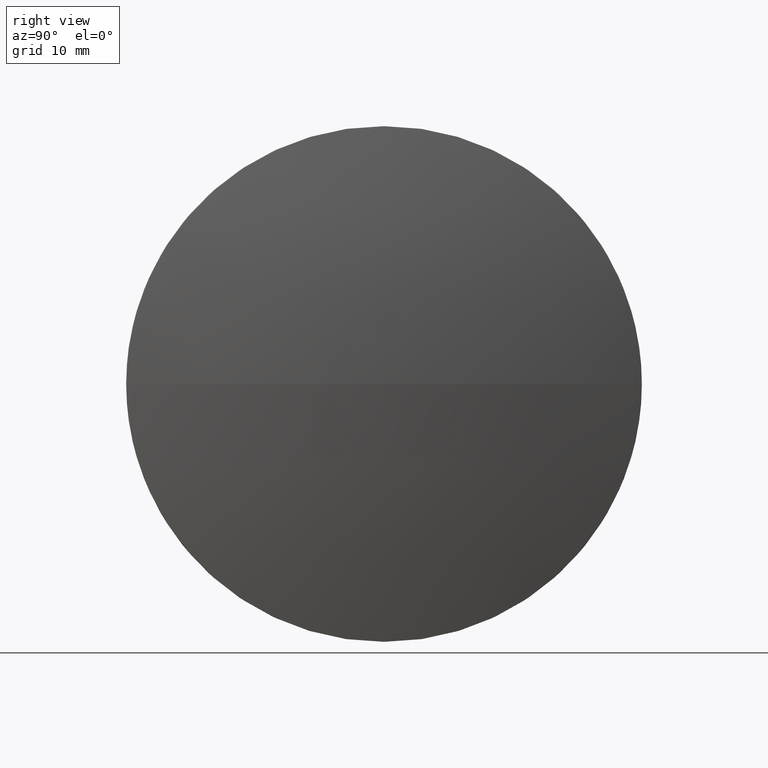
[diagram: clean part render]
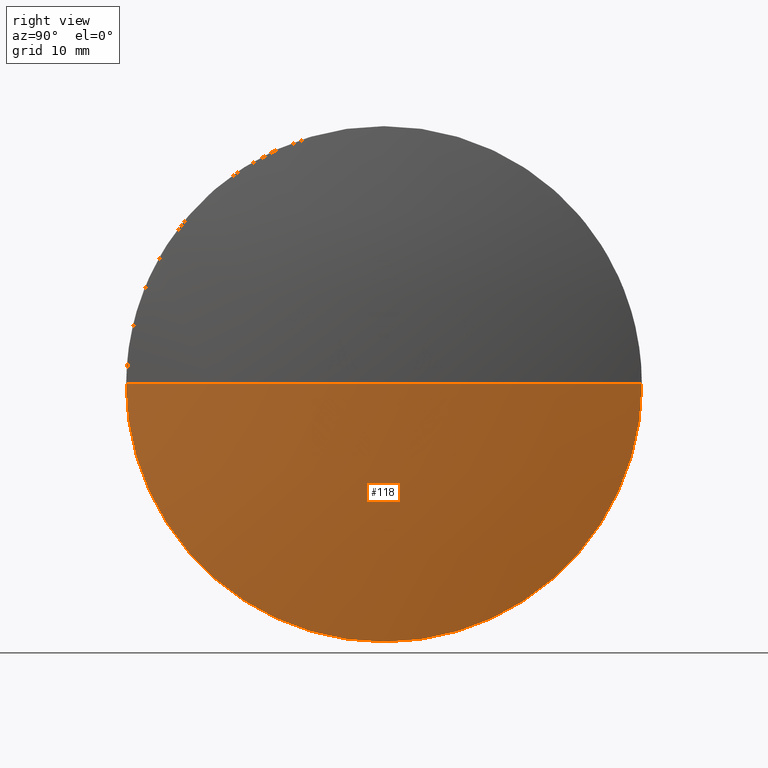
[diagram: same view with one face highlighted and labeled with its STEP entity id]
A machine part, right view. The second image highlights one B-rep face of the part: STEP entity #118.
In plain terms, the highlighted spherical surface has radius 129.294 mm.
Its self-contained STEP definition (entity closure, byte-faithful):
#2 = CARTESIAN_POINT ( 'NONE',  ( 835.8614866702325800, 351.3556078819853500, 3.061616997868370800E-015 ) ) ;
#7 = EDGE_CURVE ( 'NONE', #85, #92, #79, .T. ) ;
#9 = CARTESIAN_POINT ( 'NONE',  ( 835.8614866702325800, 326.3556078819852900, 0.0000000000000000000 ) ) ;
#11 = EDGE_LOOP ( 'NONE', ( #80, #133, #160, #56 ) ) ;
#28 = CARTESIAN_POINT ( 'NONE',  ( 835.8614866702325800, 301.3556078819854100, 0.0000000000000000000 ) ) ;
#30 = DIRECTION ( 'NONE',  ( 0.0000000000000000000, 0.0000000000000000000, 1.000000000000000000 ) ) ;
#33 = AXIS2_PLACEMENT_3D ( 'NONE', #110, #30, #126 ) ;
#35 = AXIS2_PLACEMENT_3D ( 'NONE', #95, #181, #112 ) ;
#41 = CARTESIAN_POINT ( 'NONE',  ( 835.8614866702325800, 326.3556078819852900, 0.0000000000000000000 ) ) ;
#42 = FACE_OUTER_BOUND ( 'NONE', #11, .T. ) ;
#52 = AXIS2_PLACEMENT_3D ( 'NONE', #168, #178, #82 ) ;
#55 = SPHERICAL_SURFACE ( 'NONE', #33, 129.2937704918034600 ) ;
#56 = ORIENTED_EDGE ( 'NONE', *, *, #7, .F. ) ;
#72 = DIRECTION ( 'NONE',  ( -1.000000000000000000, -0.0000000000000000000, -0.0000000000000000000 ) ) ;
#73 = DIRECTION ( 'NONE',  ( 0.0000000000000000000, 0.0000000000000000000, 1.000000000000000000 ) ) ;
#79 = CIRCLE ( 'NONE', #174, 24.99999999999996800 ) ;
#80 = ORIENTED_EDGE ( 'NONE', *, *, #184, .F. ) ;
#81 = DIRECTION ( 'NONE',  ( 0.0000000000000000000, 0.0000000000000000000, 1.000000000000000000 ) ) ;
#82 = DIRECTION ( 'NONE',  ( -1.000000000000000000, 0.0000000000000000000, 0.0000000000000000000 ) ) ;
#85 = VERTEX_POINT ( 'NONE', #2 ) ;
#92 = VERTEX_POINT ( 'NONE', #123 ) ;
#95 = CARTESIAN_POINT ( 'NONE',  ( 709.0077161784291800, 326.3556078819854100, 0.0000000000000000000 ) ) ;
#99 = CIRCLE ( 'NONE', #52, 129.2937704918034600 ) ;
#102 = CIRCLE ( 'NONE', #161, 24.99999999999996800 ) ;
#110 = CARTESIAN_POINT ( 'NONE',  ( 709.0077161784291800, 326.3556078819854100, 0.0000000000000000000 ) ) ;
#112 = DIRECTION ( 'NONE',  ( 0.0000000000000000000, -1.000000000000000000, -1.224646799147353200E-016 ) ) ;
#115 = CIRCLE ( 'NONE', #35, 129.2937704918034600 ) ;
#116 = VERTEX_POINT ( 'NONE', #154 ) ;
#118 = ADVANCED_FACE ( 'NONE', ( #42 ), #55, .T. ) ;
#123 = CARTESIAN_POINT ( 'NONE',  ( 835.8614866702325800, 326.3556078819852900, -24.99999999999996800 ) ) ;
#126 = DIRECTION ( 'NONE',  ( 0.0000000000000000000, -1.000000000000000000, 0.0000000000000000000 ) ) ;
#129 = VERTEX_POINT ( 'NONE', #28 ) ;
#132 = EDGE_CURVE ( 'NONE', #116, #129, #99, .T. ) ;
#133 = ORIENTED_EDGE ( 'NONE', *, *, #132, .T. ) ;
#154 = CARTESIAN_POINT ( 'NONE',  ( 838.3014866702326300, 326.3556078819854100, 0.0000000000000000000 ) ) ;
#160 = ORIENTED_EDGE ( 'NONE', *, *, #167, .F. ) ;
#161 = AXIS2_PLACEMENT_3D ( 'NONE', #9, #72, #73 ) ;
#164 = DIRECTION ( 'NONE',  ( -1.000000000000000000, -0.0000000000000000000, -0.0000000000000000000 ) ) ;
#167 = EDGE_CURVE ( 'NONE', #92, #129, #102, .T. ) ;
#168 = CARTESIAN_POINT ( 'NONE',  ( 709.0077161784291800, 326.3556078819854100, 0.0000000000000000000 ) ) ;
#174 = AXIS2_PLACEMENT_3D ( 'NONE', #41, #164, #81 ) ;
#178 = DIRECTION ( 'NONE',  ( 0.0000000000000000000, 0.0000000000000000000, -1.000000000000000000 ) ) ;
#181 = DIRECTION ( 'NONE',  ( 0.0000000000000000000, -1.224646799147353200E-016, 1.000000000000000000 ) ) ;
#184 = EDGE_CURVE ( 'NONE', #116, #85, #115, .T. ) ;